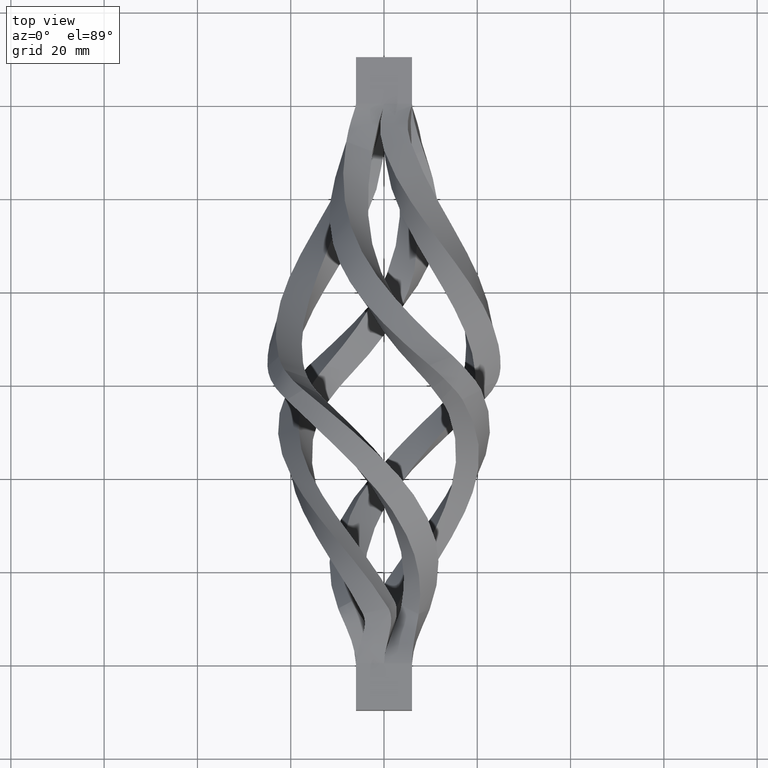
[diagram: clean part render]
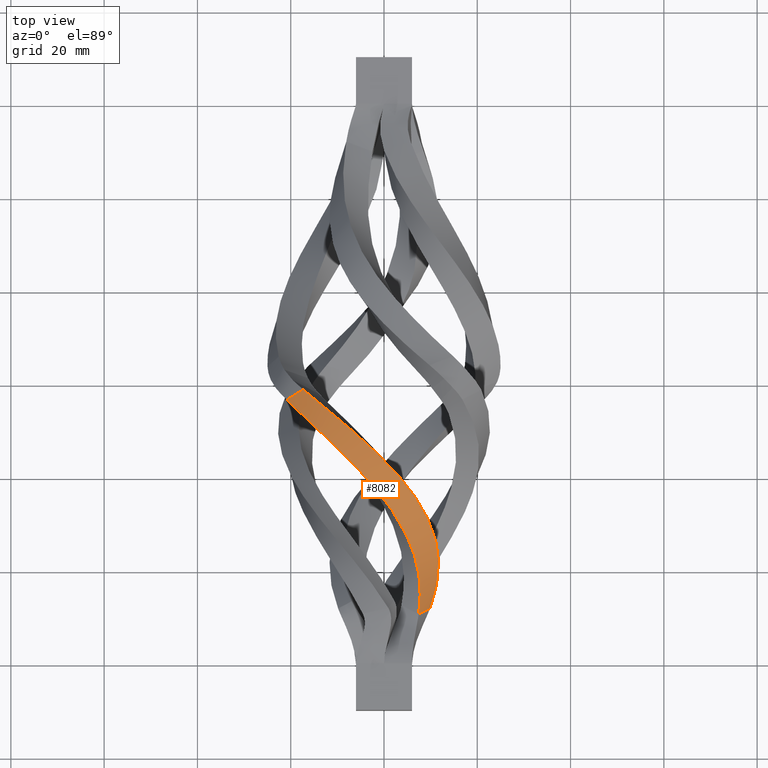
[diagram: same view with one face highlighted and labeled with its STEP entity id]
A machine part, top view. The second image highlights one B-rep face of the part: STEP entity #8082.
In plain terms, the highlighted face is a freeform B-spline surface patch.
Its self-contained STEP definition (entity closure, byte-faithful):
#437 = CARTESIAN_POINT ( 'NONE',  ( -3.206194389843958437, -20.83333333331857773, 20.01761723837864793 ) ) ;
#611 = CARTESIAN_POINT ( 'NONE',  ( 7.348469228349602922, -50.00000000000000000, 4.242640687119164866 ) ) ;
#667 = CARTESIAN_POINT ( 'NONE',  ( -16.55706282587405553, -2.307837559287291729, 21.75184837816943784 ) ) ;
#878 = B_SPLINE_CURVE_WITH_KNOTS ( 'NONE', 3,
 ( #5169, #11274, #10205, #13973, #6202, #12668, #11339, #16729, #10089, #15414 ),
 .UNSPECIFIED., .F., .F.,
 ( 4, 2, 2, 2, 4 ),
 ( 0.5341608721577056906, 0.6250000000000000000, 0.7500000000000000000, 0.8750000000000000000, 1.000000000000000000 ),
 .UNSPECIFIED. ) ;
#1013 = CARTESIAN_POINT ( 'NONE',  ( -19.63049739448673137, -3.050684242567008209, 18.15309708752616658 ) ) ;
#1814 = CARTESIAN_POINT ( 'NONE',  ( -20.57069826401082224, -4.173495097018950162, 17.58015250692217890 ) ) ;
#1873 = CARTESIAN_POINT ( 'NONE',  ( 8.826009850349199937, -27.30108624284232377, 15.33418013124794399 ) ) ;
#2106 = B_SPLINE_CURVE_WITH_KNOTS ( 'NONE', 3,
 ( #6090, #15252, #1013, #6440 ),
 .UNSPECIFIED., .F., .F.,
 ( 4, 4 ),
 ( 2.121659050517633585E-15, 0.005796512410685154479 ),
 .UNSPECIFIED. ) ;
#2403 = VERTEX_POINT ( 'NONE', #10328 ) ;
#3081 = CARTESIAN_POINT ( 'NONE',  ( 5.507995980435037353, -33.33333333334008586, 14.22728425483902015 ) ) ;
#3092 = CARTESIAN_POINT ( 'NONE',  ( 5.507995980435037353, -33.33333333334008586, 14.22728425483902015 ) ) ;
#3257 = CARTESIAN_POINT ( 'NONE',  ( 7.438691302499062630, -49.42068362224298284, 4.539131831124992189 ) ) ;
#3892 = VERTEX_POINT ( 'NONE', #10861 ) ;
#4773 = EDGE_CURVE ( 'NONE', #2403, #10940, #8548, .T. ) ;
#4897 = B_SPLINE_SURFACE_WITH_KNOTS ( 'NONE', 1, 3, ( 
 ( #16211, #667, #8320, #11106, #13749, #1873, #13687, #5851, #9868, #8368 ),
 ( #11162, #1814, #12428, #7177, #437, #12492, #3092, #16327, #8490, #611 ) ),
 .UNSPECIFIED., .F., .F., .F.,
 ( 2, 2 ),
 ( 4, 2, 2, 2, 4 ),
 ( 0.000000000000000000, 1.000000000000000000 ),
 ( 0.5000000000000000000, 0.6250000000000000000, 0.7500000000000000000, 0.8750000000000000000, 1.000000000000000000 ),
 .UNSPECIFIED. ) ;
#5117 = CARTESIAN_POINT ( 'NONE',  ( 9.850307094717413392, -48.13441957616089439, -0.8818511874569324727 ) ) ;
#5169 = CARTESIAN_POINT ( 'NONE',  ( -17.31260836254760704, -1.553429965097680832, 20.85941379660755146 ) ) ;
#5373 = EDGE_CURVE ( 'NONE', #9208, #2403, #14136, .T. ) ;
#5625 = CARTESIAN_POINT ( 'NONE',  ( -17.89002939505458656, -6.633252906475789246, 18.64158208520242255 ) ) ;
#5678 = CARTESIAN_POINT ( 'NONE',  ( -20.86003899735237965, -3.697801499753341936, 16.81025835379850619 ) ) ;
#5851 = CARTESIAN_POINT ( 'NONE',  ( 12.09237600132500035, -39.80108624282080854, 5.017823328672739613 ) ) ;
#6090 = CARTESIAN_POINT ( 'NONE',  ( -17.31260836254760704, -1.553429965097680832, 20.85941379660755146 ) ) ;
#6202 = CARTESIAN_POINT ( 'NONE',  ( 2.551708305758789486, -18.96775290947946147, 20.61491966526334352 ) ) ;
#6440 = CARTESIAN_POINT ( 'NONE',  ( -20.86003899735237965, -3.697801499753341936, 16.81025835379850619 ) ) ;
#6456 = CARTESIAN_POINT ( 'NONE',  ( 8.242384296063512750, -49.02989084591409608, 2.828308586379917777 ) ) ;
#6995 = CARTESIAN_POINT ( 'NONE',  ( -7.308853124259218959, -16.66666666663408236, 20.79692714708302859 ) ) ;
#7177 = CARTESIAN_POINT ( 'NONE',  ( -7.308853124259218959, -16.66666666663408236, 20.79692714708302859 ) ) ;
#8082 = ADVANCED_FACE ( 'NONE', ( #14537 ), #4897, .T. ) ;
#8320 = CARTESIAN_POINT ( 'NONE',  ( -11.31587842585157766, -6.467752909526797822, 22.97785956624892378 ) ) ;
#8368 = CARTESIAN_POINT ( 'NONE',  ( 9.850307094717416945, -48.13441957616088729, -0.8818511874569288089 ) ) ;
#8415 = CARTESIAN_POINT ( 'NONE',  ( 8.021552348902119434, -45.44813392395698770, 6.596782052346583214 ) ) ;
#8490 = CARTESIAN_POINT ( 'NONE',  ( 8.034543373215592865, -45.83455923405022503, 6.348309091204061616 ) ) ;
#8548 = B_SPLINE_CURVE_WITH_KNOTS ( 'NONE', 3,
 ( #9254, #6456, #15549, #13026 ),
 .UNSPECIFIED., .F., .F.,
 ( 4, 4 ),
 ( 0.000000000000000000, 1.000000000000000000 ),
 .UNSPECIFIED. ) ;
#9208 = VERTEX_POINT ( 'NONE', #14076 ) ;
#9254 = CARTESIAN_POINT ( 'NONE',  ( 7.438691302499062630, -49.42068362224298284, 4.539131831124992189 ) ) ;
#9618 = CARTESIAN_POINT ( 'NONE',  ( -14.71868693061753675, -9.564932312013992188, 19.76124031665928982 ) ) ;
#9868 = CARTESIAN_POINT ( 'NONE',  ( 11.43098393993596673, -43.96773121678980090, 1.661103241236473238 ) ) ;
#10089 = CARTESIAN_POINT ( 'NONE',  ( 11.43098393993548356, -43.96773121679106566, 1.661103241235698746 ) ) ;
#10205 = CARTESIAN_POINT ( 'NONE',  ( -10.00845026208094879, -7.606448648108083077, 22.89949628690304451 ) ) ;
#10328 = CARTESIAN_POINT ( 'NONE',  ( 7.438691302499062630, -49.42068362224298284, 4.539131831124992189 ) ) ;
#10861 = CARTESIAN_POINT ( 'NONE',  ( -17.31260836254760704, -1.553429965097680832, 20.85941379660755146 ) ) ;
#10921 = CARTESIAN_POINT ( 'NONE',  ( 3.206194389844457593, -29.16666666668144003, 16.72266413585992240 ) ) ;
#10940 = VERTEX_POINT ( 'NONE', #5117 ) ;
#11106 = CARTESIAN_POINT ( 'NONE',  ( -1.747708168555370811, -14.80108624279496610, 22.40437245655578735 ) ) ;
#11162 = CARTESIAN_POINT ( 'NONE',  ( -24.46954778392915131, 0.000000000000000000, 14.12750000000029083 ) ) ;
#11274 = CARTESIAN_POINT ( 'NONE',  ( -13.72650675390211994, -4.582043170022932266, 22.30897290579693859 ) ) ;
#11339 = CARTESIAN_POINT ( 'NONE',  ( 10.79313720077914773, -31.46775290950096959, 11.86561198243995818 ) ) ;
#12244 = CARTESIAN_POINT ( 'NONE',  ( 7.863814158604731652, -41.47350952431553850, 9.150656103966726462 ) ) ;
#12428 = CARTESIAN_POINT ( 'NONE',  ( -16.00371721929990088, -8.333333333365912310, 19.58162914298601009 ) ) ;
#12492 = CARTESIAN_POINT ( 'NONE',  ( 3.206194389844457593, -29.16666666668144003, 16.72266413585992240 ) ) ;
#12668 = CARTESIAN_POINT ( 'NONE',  ( 8.826009850349198160, -27.30108624284232377, 15.33418013124794399 ) ) ;
#13026 = CARTESIAN_POINT ( 'NONE',  ( 9.850307094717413392, -48.13441957616089439, -0.8818511874569324727 ) ) ;
#13053 = EDGE_LOOP ( 'NONE', ( #13442, #14817, #13461, #14104 ) ) ;
#13442 = ORIENTED_EDGE ( 'NONE', *, *, #5373, .T. ) ;
#13461 = ORIENTED_EDGE ( 'NONE', *, *, #14457, .F. ) ;
#13687 = CARTESIAN_POINT ( 'NONE',  ( 10.79313720077914773, -31.46775290950096959, 11.86561198244417348 ) ) ;
#13749 = CARTESIAN_POINT ( 'NONE',  ( 2.551708305758790374, -18.96775290947946147, 20.61491966526334352 ) ) ;
#13973 = CARTESIAN_POINT ( 'NONE',  ( -1.747708168555370811, -14.80108624279496610, 22.40437245654560527 ) ) ;
#14076 = CARTESIAN_POINT ( 'NONE',  ( -20.86003899735237965, -3.697801499753341936, 16.81025835379850619 ) ) ;
#14104 = ORIENTED_EDGE ( 'NONE', *, *, #15646, .T. ) ;
#14136 = B_SPLINE_CURVE_WITH_KNOTS ( 'NONE', 3,
 ( #5678, #5625, #9618, #6995, #16139, #10921, #3081, #12244, #8415, #3257 ),
 .UNSPECIFIED., .F., .F.,
 ( 4, 2, 2, 2, 4 ),
 ( 0.5369479693597313252, 0.6250000000000000000, 0.7500000000000000000, 0.8750000000000000000, 0.9942052857296589385 ),
 .UNSPECIFIED. ) ;
#14457 = EDGE_CURVE ( 'NONE', #3892, #10940, #878, .T. ) ;
#14537 = FACE_OUTER_BOUND ( 'NONE', #13053, .T. ) ;
#14817 = ORIENTED_EDGE ( 'NONE', *, *, #4773, .T. ) ;
#15252 = CARTESIAN_POINT ( 'NONE',  ( -18.44108237740710265, -2.328600259144695261, 19.49581252331385883 ) ) ;
#15414 = CARTESIAN_POINT ( 'NONE',  ( 9.850307094717413392, -48.13441957616089439, -0.8818511874569324727 ) ) ;
#15549 = CARTESIAN_POINT ( 'NONE',  ( 9.046567190891600774, -48.60113055643217450, 1.021020517412472683 ) ) ;
#15646 = EDGE_CURVE ( 'NONE', #3892, #9208, #2106, .T. ) ;
#16139 = CARTESIAN_POINT ( 'NONE',  ( -3.206194389843958437, -20.83333333331857773, 20.01761723837864793 ) ) ;
#16211 = CARTESIAN_POINT ( 'NONE',  ( -21.28252657224324551, 1.865580423839115154, 18.85640108571273643 ) ) ;
#16327 = CARTESIAN_POINT ( 'NONE',  ( 7.919715050244239940, -41.66666666665992835, 9.030193479649737398 ) ) ;
#16729 = CARTESIAN_POINT ( 'NONE',  ( 12.09237600132500035, -39.80108624282080854, 5.017823328676955796 ) ) ;